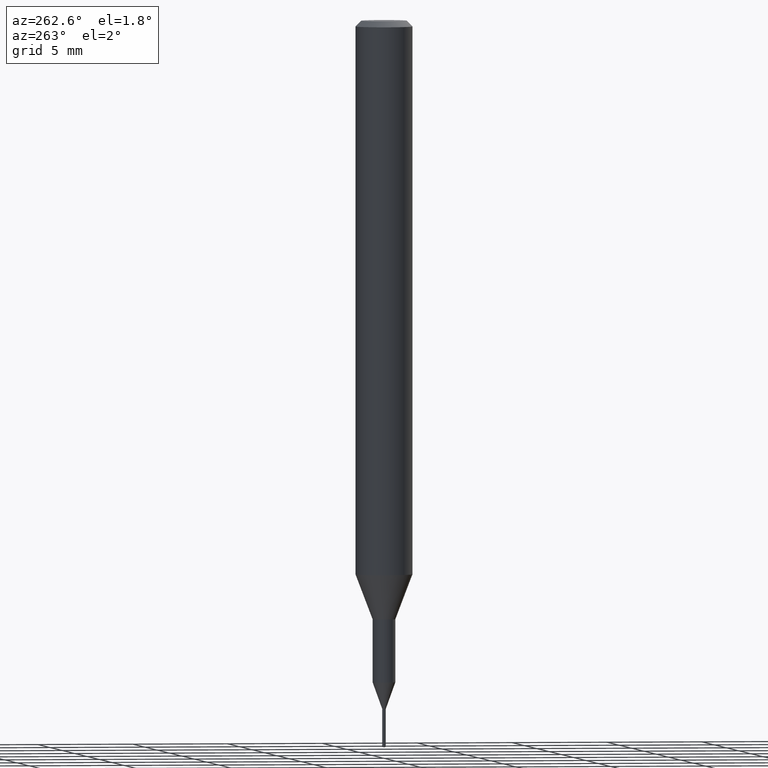
[diagram: clean part render]
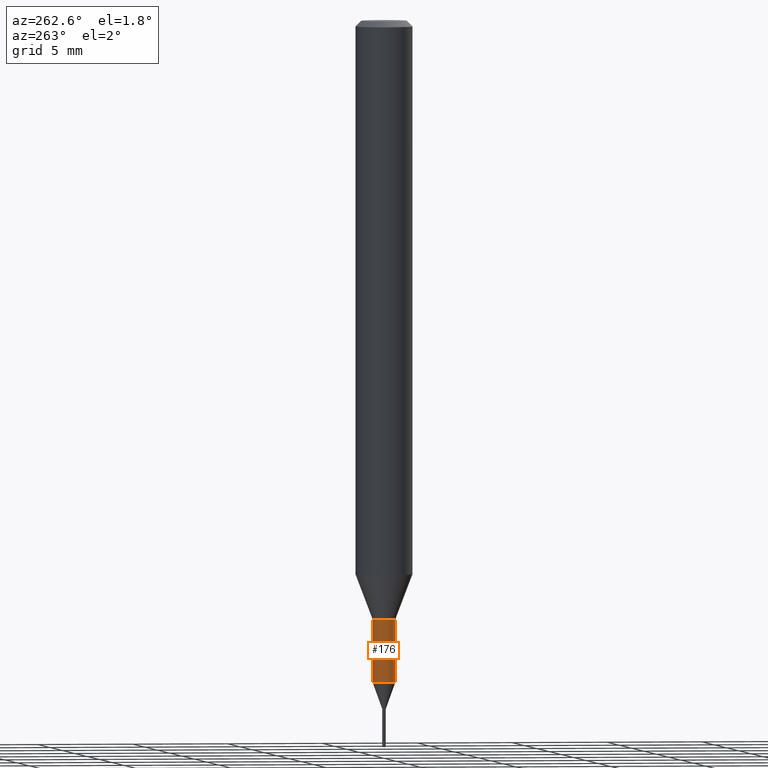
[diagram: same view with one face highlighted and labeled with its STEP entity id]
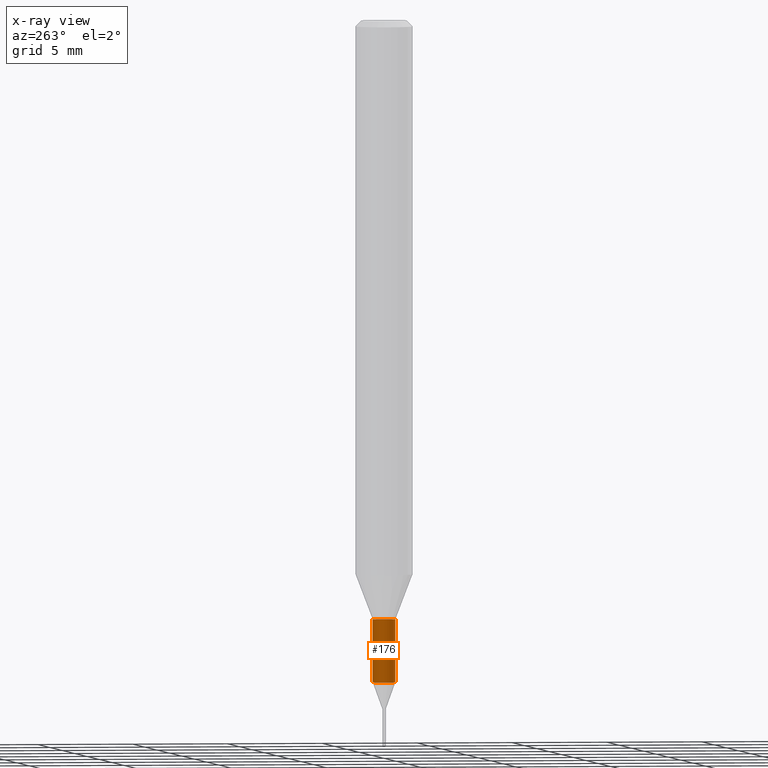
[diagram: x-ray of the same camera — body ghosted, the highlighted face saturated]
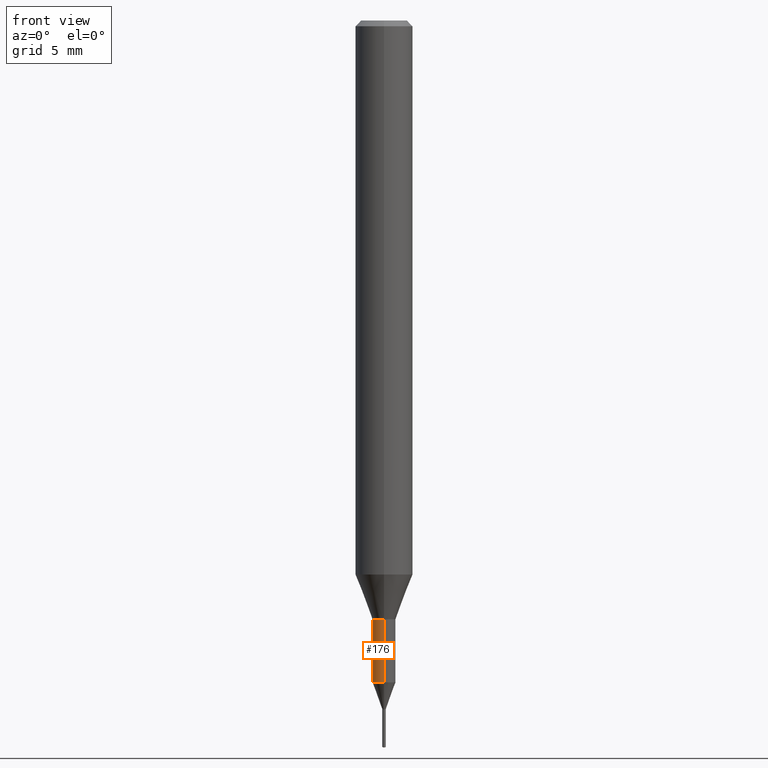
[diagram: same view with one face highlighted and labeled with its STEP entity id]
A machine part, auxiliary view. The second image highlights one B-rep face of the part: STEP entity #176.
The next image is the same camera in x-ray: the body ghosted, the highlighted face saturated — about 0% of this face is hidden behind the body in this view.
A second angle (front view) of the same face is appended — the face is thin or edge-on in the first view.
In plain terms, the highlighted cylindrical surface (edge-blend (fillet) strip) has radius 0.5999 mm, axis along (-0, -0, 1).
Its self-contained STEP definition (entity closure, byte-faithful):
#140=VERTEX_POINT('',#323);
#146=EDGE_CURVE('',#170,#140,#330,.T.);
#150=EDGE_CURVE('',#254,#212,#334,.T.);
#170=VERTEX_POINT('',#356);
#176=ADVANCED_FACE('',(#362),#363,.T.);
#208=EDGE_CURVE('',#254,#170,#397,.T.);
#212=VERTEX_POINT('',#401);
#246=EDGE_CURVE('',#140,#212,#443,.T.);
#254=VERTEX_POINT('',#451);
#323=CARTESIAN_POINT('',(0.0,0.59995,-31.3));
#330=CIRCLE('',#528,0.59995);
#334=CIRCLE('',#534,0.59995);
#356=CARTESIAN_POINT('',(7.34702581975735E-017,-0.59995,-31.3));
#362=FACE_OUTER_BOUND('',#571,.T.);
#363=CYLINDRICAL_SURFACE('',#572,0.59995);
#397=LINE('',#614,#615);
#401=CARTESIAN_POINT('',(0.0,0.59995,-34.599));
#443=LINE('',#676,#677);
#451=CARTESIAN_POINT('',(7.34702581975735E-017,-0.59995,-34.599));
#528=AXIS2_PLACEMENT_3D('',#772,#773,#774);
#534=AXIS2_PLACEMENT_3D('',#778,#779,#780);
#571=EDGE_LOOP('',(#807,#808,#809,#810));
#572=AXIS2_PLACEMENT_3D('',#811,#812,#813);
#614=CARTESIAN_POINT('',(7.34702581975735E-017,-0.59995,-32.9495));
#615=VECTOR('',#850,1.0);
#676=CARTESIAN_POINT('',(-7.34702581975735E-017,0.59995,-32.9495));
#677=VECTOR('',#917,1.0);
#772=CARTESIAN_POINT('',(0.0,0.0,-31.3));
#773=DIRECTION('',(0.0,0.0,-1.0));
#774=DIRECTION('',(0.0,1.0,0.0));
#778=CARTESIAN_POINT('',(0.0,0.0,-34.599));
#779=DIRECTION('',(0.0,0.0,-1.0));
#780=DIRECTION('',(0.0,1.0,0.0));
#807=ORIENTED_EDGE('',*,*,#246,.T.);
#808=ORIENTED_EDGE('',*,*,#150,.F.);
#809=ORIENTED_EDGE('',*,*,#208,.T.);
#810=ORIENTED_EDGE('',*,*,#146,.T.);
#811=CARTESIAN_POINT('',(0.0,0.0,-32.9495));
#812=DIRECTION('',(-0.0,-0.0,1.0));
#813=DIRECTION('',(0.0,1.0,0.0));
#850=DIRECTION('',(-0.0,-0.0,1.0));
#917=DIRECTION('',(0.0,0.0,-1.0));